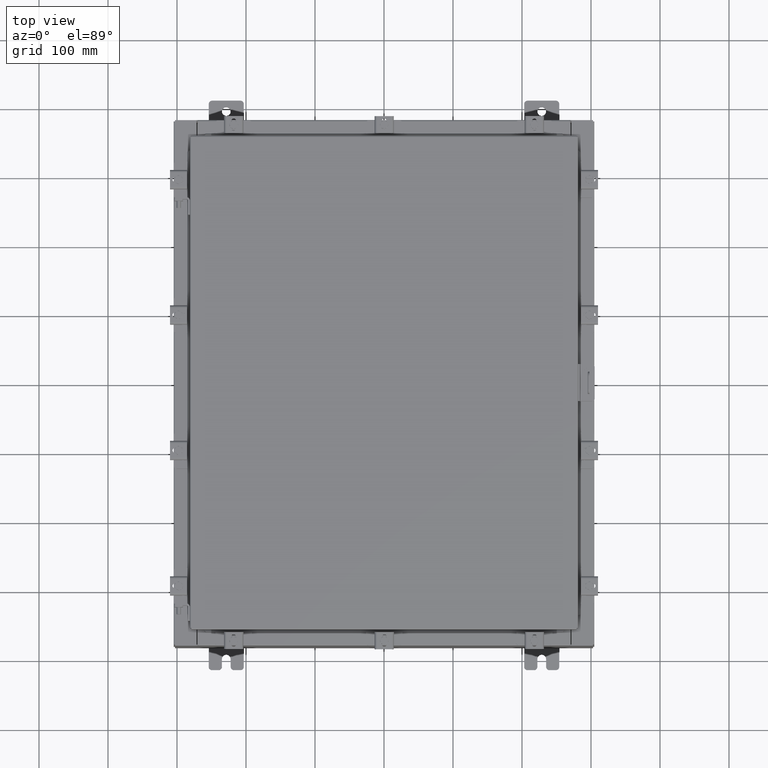
[diagram: clean part render]
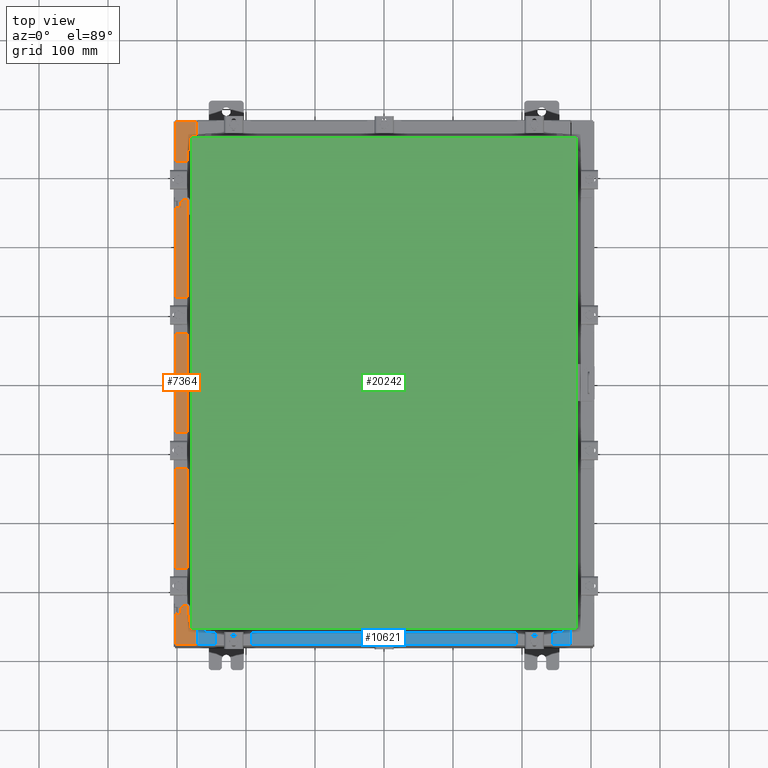
[diagram: same view with three faces highlighted in distinct colors, each labeled with its STEP entity id]
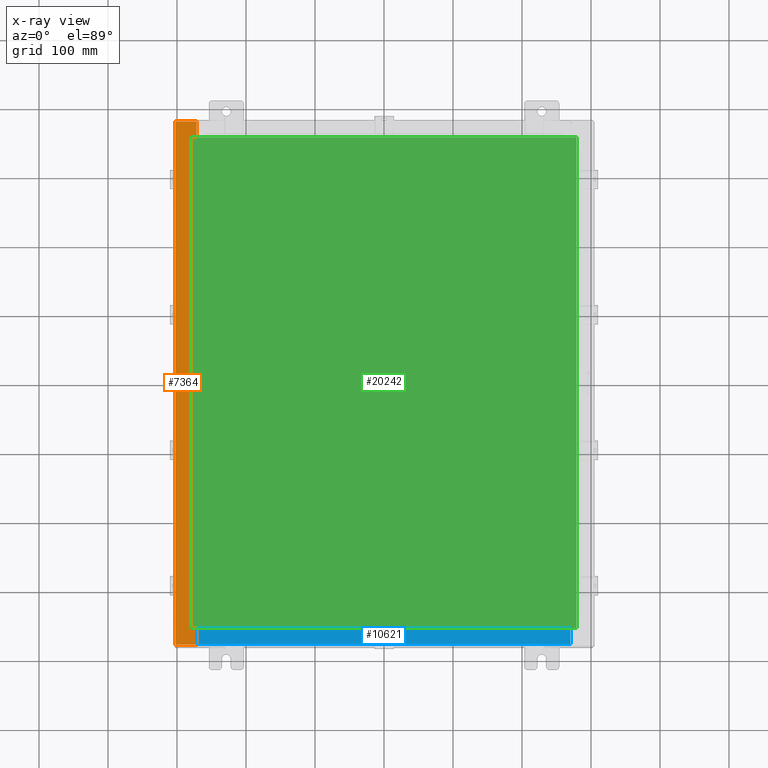
[diagram: x-ray of the same camera — body ghosted, the three highlighted faces saturated]
A machine part, top view with three faces highlighted in distinct colors.
The next image is the same camera in x-ray (body ghosted, the three faces saturated) — at least one of them is partly hidden behind the body in this view.
Their STEP definitions:

[orange] entity #7364 — the highlighted planar face has unit normal (0, 0, -1).
#169 = EDGE_CURVE ( 'NONE', #9883, #9357, #8769, .T. ) ;
#329 = CIRCLE ( 'NONE', #17672, 0.01867499999999949400 ) ;
#586 = EDGE_CURVE ( 'NONE', #2605, #9883, #329, .T. ) ;
#882 = VECTOR ( 'NONE', #19333, 39.37007874015748100 ) ;
#966 = LINE ( 'NONE', #5670, #4617 ) ;
#1160 = EDGE_CURVE ( 'NONE', #15043, #9858, #13477, .T. ) ;
#1477 = CARTESIAN_POINT ( 'NONE',  ( -10.71270000000003500, -13.59375000000000000, 7.925300000000010700 ) ) ;
#1572 = ORIENTED_EDGE ( 'NONE', *, *, #15513, .T. ) ;
#2079 = DIRECTION ( 'NONE',  ( 0.0000000000000000000, 1.000000000000000000, 0.0000000000000000000 ) ) ;
#2243 = VECTOR ( 'NONE', #3326, 39.37007874015748100 ) ;
#2605 = VERTEX_POINT ( 'NONE', #14900 ) ;
#2869 = ORIENTED_EDGE ( 'NONE', *, *, #8340, .T. ) ;
#2976 = VECTOR ( 'NONE', #9485, 39.37007874015748100 ) ;
#3091 = LINE ( 'NONE', #6512, #16259 ) ;
#3206 = DIRECTION ( 'NONE',  ( -0.0000000000000000000, 1.000000000000000000, -0.0000000000000000000 ) ) ;
#3326 = DIRECTION ( 'NONE',  ( -0.0000000000000000000, -1.000000000000000000, -0.0000000000000000000 ) ) ;
#3363 = ORIENTED_EDGE ( 'NONE', *, *, #169, .F. ) ;
#3474 = DIRECTION ( 'NONE',  ( 1.000000000000000000, 0.0000000000000000000, -2.170286390200049500E-014 ) ) ;
#3698 = CARTESIAN_POINT ( 'NONE',  ( -10.75005000000003400, 13.59374999999999800, 7.925300000000008900 ) ) ;
#3716 = DIRECTION ( 'NONE',  ( 1.000000000000000000, 0.0000000000000000000, 0.0000000000000000000 ) ) ;
#3864 = EDGE_CURVE ( 'NONE', #17413, #18962, #18991, .T. ) ;
#3983 = CARTESIAN_POINT ( 'NONE',  ( -10.71270000000003500, -13.59375000000000000, 7.925300000000010700 ) ) ;
#4462 = VECTOR ( 'NONE', #3474, 39.37007874015748100 ) ;
#4566 = EDGE_CURVE ( 'NONE', #13422, #19704, #5535, .T. ) ;
#4617 = VECTOR ( 'NONE', #2079, 39.37007874015748100 ) ;
#4718 = VECTOR ( 'NONE', #22719, 39.37007874015748100 ) ;
#4996 = EDGE_CURVE ( 'NONE', #9215, #19704, #12523, .T. ) ;
#5169 = CARTESIAN_POINT ( 'NONE',  ( -10.71270000000003500, 13.59374999999999800, 7.925300000000010700 ) ) ;
#5535 = LINE ( 'NONE', #21057, #19236 ) ;
#5670 = CARTESIAN_POINT ( 'NONE',  ( -10.69970000000003400, 0.0000000000000000000, 7.925300000000008900 ) ) ;
#5676 = CARTESIAN_POINT ( 'NONE',  ( -10.69970000000003400, -14.92530000000000000, 7.925300000000008900 ) ) ;
#5876 = CARTESIAN_POINT ( 'NONE',  ( -5.679009539018295300E-014, 14.92530000000000000, 7.925300000000085300 ) ) ;
#6020 = CARTESIAN_POINT ( 'NONE',  ( -11.91230000000003400, 14.92530000000000000, 7.925300000000000000 ) ) ;
#6127 = CARTESIAN_POINT ( 'NONE',  ( -10.75005000000003400, 13.59374999999999800, 7.925300000000010700 ) ) ;
#6512 = CARTESIAN_POINT ( 'NONE',  ( -10.69970000000003400, 13.63109999999999600, 7.925300000000009800 ) ) ;
#7364 = ADVANCED_FACE ( 'NONE', ( #7755 ), #9812, .F. ) ;
#7452 = CARTESIAN_POINT ( 'NONE',  ( -10.75005000000003400, -13.59375000000000000, 7.925300000000008900 ) ) ;
#7755 = FACE_OUTER_BOUND ( 'NONE', #12661, .T. ) ;
#8340 = EDGE_CURVE ( 'NONE', #15485, #9215, #966, .T. ) ;
#8387 = DIRECTION ( 'NONE',  ( -7.132762385546384700E-015, -0.0000000000000000000, 1.000000000000000000 ) ) ;
#8640 = CARTESIAN_POINT ( 'NONE',  ( -5.679009539018295300E-014, -14.92530000000000000, 7.925300000000085300 ) ) ;
#8769 = LINE ( 'NONE', #6127, #17712 ) ;
#9215 = VERTEX_POINT ( 'NONE', #13462 ) ;
#9242 = LINE ( 'NONE', #21327, #4462 ) ;
#9357 = VERTEX_POINT ( 'NONE', #5169 ) ;
#9485 = DIRECTION ( 'NONE',  ( -1.000000000000000000, 0.0000000000000000000, -7.132762385546384700E-015 ) ) ;
#9677 = CARTESIAN_POINT ( 'NONE',  ( -10.75005000000003400, -13.63109999999999800, 7.925300000000008900 ) ) ;
#9812 = PLANE ( 'NONE',  #13969 ) ;
#9858 = VERTEX_POINT ( 'NONE', #14356 ) ;
#9883 = VERTEX_POINT ( 'NONE', #3698 ) ;
#10383 = CARTESIAN_POINT ( 'NONE',  ( -10.69970000000003400, 13.63109999999999600, 7.925300000000008900 ) ) ;
#10447 = LINE ( 'NONE', #8640, #882 ) ;
#10686 = CARTESIAN_POINT ( 'NONE',  ( -10.75005000000003400, 13.61242499999999600, 7.925300000000010700 ) ) ;
#10946 = EDGE_CURVE ( 'NONE', #15485, #2605, #3091, .T. ) ;
#11740 = EDGE_CURVE ( 'NONE', #9357, #17413, #12331, .T. ) ;
#12035 = ORIENTED_EDGE ( 'NONE', *, *, #13009, .F. ) ;
#12331 = LINE ( 'NONE', #17649, #2243 ) ;
#12521 = ORIENTED_EDGE ( 'NONE', *, *, #21254, .F. ) ;
#12523 = LINE ( 'NONE', #5876, #2976 ) ;
#12661 = EDGE_LOOP ( 'NONE', ( #15500, #2869, #13700, #22802, #1572, #21135, #12035, #12521, #23014, #18241, #3363, #17359 ) ) ;
#13009 = EDGE_CURVE ( 'NONE', #16849, #9858, #9242, .T. ) ;
#13422 = VERTEX_POINT ( 'NONE', #16997 ) ;
#13462 = CARTESIAN_POINT ( 'NONE',  ( -10.69970000000003400, 14.92530000000000000, 7.925300000000008900 ) ) ;
#13477 = LINE ( 'NONE', #18181, #18208 ) ;
#13700 = ORIENTED_EDGE ( 'NONE', *, *, #4996, .T. ) ;
#13969 = AXIS2_PLACEMENT_3D ( 'NONE', #18691, #16895, #22303 ) ;
#14356 = CARTESIAN_POINT ( 'NONE',  ( -10.69970000000003400, -13.63110000000000200, 7.925300000000008900 ) ) ;
#14663 = CIRCLE ( 'NONE', #22898, 0.01867499999999949400 ) ;
#14900 = CARTESIAN_POINT ( 'NONE',  ( -10.75005000000003400, 13.63109999999999600, 7.925300000000008900 ) ) ;
#15043 = VERTEX_POINT ( 'NONE', #5676 ) ;
#15485 = VERTEX_POINT ( 'NONE', #10383 ) ;
#15500 = ORIENTED_EDGE ( 'NONE', *, *, #10946, .F. ) ;
#15513 = EDGE_CURVE ( 'NONE', #13422, #15043, #10447, .T. ) ;
#15651 = DIRECTION ( 'NONE',  ( 0.0000000000000000000, 1.000000000000000000, 0.0000000000000000000 ) ) ;
#16259 = VECTOR ( 'NONE', #20900, 39.37007874015748100 ) ;
#16503 = DIRECTION ( 'NONE',  ( -7.132762385546384700E-015, -0.0000000000000000000, 1.000000000000000000 ) ) ;
#16849 = VERTEX_POINT ( 'NONE', #9677 ) ;
#16895 = DIRECTION ( 'NONE',  ( 7.132762385546384700E-015, 0.0000000000000000000, -1.000000000000000000 ) ) ;
#16997 = CARTESIAN_POINT ( 'NONE',  ( -11.91230000000003400, -14.92530000000000000, 7.925300000000000000 ) ) ;
#17359 = ORIENTED_EDGE ( 'NONE', *, *, #586, .F. ) ;
#17413 = VERTEX_POINT ( 'NONE', #3983 ) ;
#17649 = CARTESIAN_POINT ( 'NONE',  ( -10.71270000000003500, 13.59375000000000000, 7.925300000000010700 ) ) ;
#17672 = AXIS2_PLACEMENT_3D ( 'NONE', #10686, #16503, #22282 ) ;
#17712 = VECTOR ( 'NONE', #3716, 39.37007874015748100 ) ;
#18181 = CARTESIAN_POINT ( 'NONE',  ( -10.69970000000003400, 0.0000000000000000000, 7.925300000000008900 ) ) ;
#18208 = VECTOR ( 'NONE', #15651, 39.37007874015748100 ) ;
#18241 = ORIENTED_EDGE ( 'NONE', *, *, #11740, .F. ) ;
#18691 = CARTESIAN_POINT ( 'NONE',  ( -5.679009539018295300E-014, 0.0000000000000000000, 7.925300000000085300 ) ) ;
#18962 = VERTEX_POINT ( 'NONE', #7452 ) ;
#18991 = LINE ( 'NONE', #1477, #4718 ) ;
#19086 = CARTESIAN_POINT ( 'NONE',  ( -10.75005000000003400, -13.61242500000000000, 7.925300000000010700 ) ) ;
#19236 = VECTOR ( 'NONE', #3206, 39.37007874015748100 ) ;
#19333 = DIRECTION ( 'NONE',  ( 1.000000000000000000, -0.0000000000000000000, 7.132762385546384700E-015 ) ) ;
#19704 = VERTEX_POINT ( 'NONE', #6020 ) ;
#20900 = DIRECTION ( 'NONE',  ( -1.000000000000000000, 0.0000000000000000000, 2.170286390200049500E-014 ) ) ;
#20902 = DIRECTION ( 'NONE',  ( 1.000000000000000000, 0.0000000000000000000, 0.0000000000000000000 ) ) ;
#21057 = CARTESIAN_POINT ( 'NONE',  ( -11.91230000000003400, 14.92530000000000000, 7.925300000000000000 ) ) ;
#21135 = ORIENTED_EDGE ( 'NONE', *, *, #1160, .T. ) ;
#21254 = EDGE_CURVE ( 'NONE', #18962, #16849, #14663, .T. ) ;
#21327 = CARTESIAN_POINT ( 'NONE',  ( -10.75005000000003400, -13.63109999999999800, 7.925300000000010700 ) ) ;
#22282 = DIRECTION ( 'NONE',  ( 1.000000000000000000, 0.0000000000000000000, 0.0000000000000000000 ) ) ;
#22303 = DIRECTION ( 'NONE',  ( -1.000000000000000000, 0.0000000000000000000, -7.132762385546384700E-015 ) ) ;
#22719 = DIRECTION ( 'NONE',  ( -1.000000000000000000, 0.0000000000000000000, 0.0000000000000000000 ) ) ;
#22802 = ORIENTED_EDGE ( 'NONE', *, *, #4566, .F. ) ;
#22898 = AXIS2_PLACEMENT_3D ( 'NONE', #19086, #8387, #20902 ) ;
#23014 = ORIENTED_EDGE ( 'NONE', *, *, #3864, .F. ) ;

[blue] entity #10621 — the highlighted planar face has unit normal (-0, -0, 1).
#232 = VERTEX_POINT ( 'NONE', #11260 ) ;
#399 = PLANE ( 'NONE',  #3085 ) ;
#1845 = VERTEX_POINT ( 'NONE', #6251 ) ;
#2809 = EDGE_CURVE ( 'NONE', #232, #1845, #12297, .T. ) ;
#3085 = AXIS2_PLACEMENT_3D ( 'NONE', #12946, #14724, #4002 ) ;
#3128 = DIRECTION ( 'NONE',  ( -0.0000000000000000000, -1.000000000000000000, 3.566381192773190000E-015 ) ) ;
#3394 = FACE_OUTER_BOUND ( 'NONE', #19974, .T. ) ;
#4002 = DIRECTION ( 'NONE',  ( 0.0000000000000000000, -1.000000000000000000, 3.566381192773190000E-015 ) ) ;
#4175 = CARTESIAN_POINT ( 'NONE',  ( 10.63720000000000200, -1.300299999999999800, 4.000000000000004400 ) ) ;
#4320 = EDGE_CURVE ( 'NONE', #6333, #15179, #19522, .T. ) ;
#4655 = ORIENTED_EDGE ( 'NONE', *, *, #4320, .F. ) ;
#5280 = VECTOR ( 'NONE', #11457, 39.37007874015748100 ) ;
#6251 = CARTESIAN_POINT ( 'NONE',  ( 10.63720000000000200, -1.287299999999999900, 4.000000000000004400 ) ) ;
#6333 = VERTEX_POINT ( 'NONE', #16530 ) ;
#7054 = VECTOR ( 'NONE', #13023, 39.37007874015748100 ) ;
#7528 = VECTOR ( 'NONE', #3128, 39.37007874015748100 ) ;
#7870 = CARTESIAN_POINT ( 'NONE',  ( 10.63720000000000400, -1.287299999999999900, 4.000000000000003600 ) ) ;
#8649 = VECTOR ( 'NONE', #15045, 39.37007874015748100 ) ;
#9080 = ORIENTED_EDGE ( 'NONE', *, *, #2809, .F. ) ;
#9606 = CARTESIAN_POINT ( 'NONE',  ( -10.63720000000000200, -0.08770000000000000000, 4.000000000000000000 ) ) ;
#10621 = ADVANCED_FACE ( 'NONE', ( #3394 ), #399, .T. ) ;
#10666 = EDGE_CURVE ( 'NONE', #232, #15179, #11813, .T. ) ;
#11260 = CARTESIAN_POINT ( 'NONE',  ( 10.63720000000000400, -0.08769999999999965300, 4.000000000000000000 ) ) ;
#11457 = DIRECTION ( 'NONE',  ( -0.0000000000000000000, 1.000000000000000000, -3.566381192773190000E-015 ) ) ;
#11813 = LINE ( 'NONE', #18307, #7054 ) ;
#12297 = LINE ( 'NONE', #4175, #7528 ) ;
#12946 = CARTESIAN_POINT ( 'NONE',  ( 0.0000000000000000000, 1.425992975200418500E-014, 4.000000000000000000 ) ) ;
#13023 = DIRECTION ( 'NONE',  ( -1.000000000000000000, 2.568202152506545800E-017, -9.159187855938968600E-032 ) ) ;
#13406 = LINE ( 'NONE', #7870, #8649 ) ;
#14486 = ORIENTED_EDGE ( 'NONE', *, *, #23058, .F. ) ;
#14724 = DIRECTION ( 'NONE',  ( 0.0000000000000000000, 3.566381192773190000E-015, 1.000000000000000000 ) ) ;
#14751 = ORIENTED_EDGE ( 'NONE', *, *, #10666, .T. ) ;
#15045 = DIRECTION ( 'NONE',  ( -1.000000000000000000, 0.0000000000000000000, 0.0000000000000000000 ) ) ;
#15179 = VERTEX_POINT ( 'NONE', #9606 ) ;
#16530 = CARTESIAN_POINT ( 'NONE',  ( -10.63720000000000200, -1.287299999999999200, 4.000000000000004400 ) ) ;
#18307 = CARTESIAN_POINT ( 'NONE',  ( -2.252313287748606700E-018, -0.08770000000000000000, 4.000000000000000900 ) ) ;
#19522 = LINE ( 'NONE', #22228, #5280 ) ;
#19974 = EDGE_LOOP ( 'NONE', ( #4655, #14486, #9080, #14751 ) ) ;
#22228 = CARTESIAN_POINT ( 'NONE',  ( -10.63720000000000200, -0.07469999999999973900, 4.000000000000000000 ) ) ;
#23058 = EDGE_CURVE ( 'NONE', #1845, #6333, #13406, .T. ) ;

[green] entity #20242 — the highlighted planar face has unit normal (0, 0, -1).
#1443 = DIRECTION ( 'NONE',  ( 0.0000000000000000000, -1.000000000000000000, 0.0000000000000000000 ) ) ;
#2171 = CARTESIAN_POINT ( 'NONE',  ( 0.0000000000000000000, 0.0000000000000000000, 0.0000000000000000000 ) ) ;
#2553 = CARTESIAN_POINT ( 'NONE',  ( -10.99029999999999600, -14.00629999999999800, -2.219626494852214000E-016 ) ) ;
#3910 = LINE ( 'NONE', #12195, #17633 ) ;
#4754 = DIRECTION ( 'NONE',  ( -1.000000000000000000, -0.0000000000000000000, -0.0000000000000000000 ) ) ;
#5767 = DIRECTION ( 'NONE',  ( 0.0000000000000000000, 0.0000000000000000000, -1.000000000000000000 ) ) ;
#5935 = CARTESIAN_POINT ( 'NONE',  ( -10.99029999999999800, -14.00629999999999800, -2.048885995248197400E-016 ) ) ;
#6027 = DIRECTION ( 'NONE',  ( 0.0000000000000000000, 1.000000000000000000, 0.0000000000000000000 ) ) ;
#6496 = CARTESIAN_POINT ( 'NONE',  ( 10.99030000000000000, 14.00629999999999800, -2.048885995248197400E-016 ) ) ;
#6677 = VECTOR ( 'NONE', #6027, 39.37007874015748100 ) ;
#7179 = ORIENTED_EDGE ( 'NONE', *, *, #18075, .T. ) ;
#9424 = VERTEX_POINT ( 'NONE', #17978 ) ;
#9498 = LINE ( 'NONE', #2553, #13684 ) ;
#9877 = AXIS2_PLACEMENT_3D ( 'NONE', #2171, #5767, #18261 ) ;
#11464 = VERTEX_POINT ( 'NONE', #18744 ) ;
#11693 = ORIENTED_EDGE ( 'NONE', *, *, #13994, .T. ) ;
#11700 = EDGE_CURVE ( 'NONE', #11464, #17995, #3910, .T. ) ;
#12195 = CARTESIAN_POINT ( 'NONE',  ( -10.99030000000000000, 14.00630000000000100, -2.048885995248197400E-016 ) ) ;
#13292 = DIRECTION ( 'NONE',  ( 1.000000000000000000, -0.0000000000000000000, -0.0000000000000000000 ) ) ;
#13684 = VECTOR ( 'NONE', #13292, 39.37007874015748100 ) ;
#13994 = EDGE_CURVE ( 'NONE', #9424, #15286, #20382, .T. ) ;
#14731 = ORIENTED_EDGE ( 'NONE', *, *, #11700, .T. ) ;
#15286 = VERTEX_POINT ( 'NONE', #18788 ) ;
#17633 = VECTOR ( 'NONE', #1443, 39.37007874015748100 ) ;
#17978 = CARTESIAN_POINT ( 'NONE',  ( 10.99030000000000000, -14.00629999999999800, -2.048885995248197400E-016 ) ) ;
#17995 = VERTEX_POINT ( 'NONE', #5935 ) ;
#18075 = EDGE_CURVE ( 'NONE', #17995, #9424, #9498, .T. ) ;
#18261 = DIRECTION ( 'NONE',  ( -1.000000000000000000, 0.0000000000000000000, -0.0000000000000000000 ) ) ;
#18744 = CARTESIAN_POINT ( 'NONE',  ( -10.99030000000000000, 14.00630000000000100, -2.048885995248197400E-016 ) ) ;
#18788 = CARTESIAN_POINT ( 'NONE',  ( 10.99030000000000000, 14.00629999999999800, -2.048885995248197400E-016 ) ) ;
#18898 = ORIENTED_EDGE ( 'NONE', *, *, #19867, .T. ) ;
#19191 = LINE ( 'NONE', #6496, #22827 ) ;
#19867 = EDGE_CURVE ( 'NONE', #15286, #11464, #19191, .T. ) ;
#19980 = PLANE ( 'NONE',  #9877 ) ;
#20242 = ADVANCED_FACE ( 'NONE', ( #21421 ), #19980, .F. ) ;
#20382 = LINE ( 'NONE', #22131, #6677 ) ;
#21421 = FACE_OUTER_BOUND ( 'NONE', #22234, .T. ) ;
#22131 = CARTESIAN_POINT ( 'NONE',  ( 10.99030000000000000, -14.00629999999999800, -2.048885995248197400E-016 ) ) ;
#22234 = EDGE_LOOP ( 'NONE', ( #7179, #11693, #18898, #14731 ) ) ;
#22827 = VECTOR ( 'NONE', #4754, 39.37007874015748100 ) ;